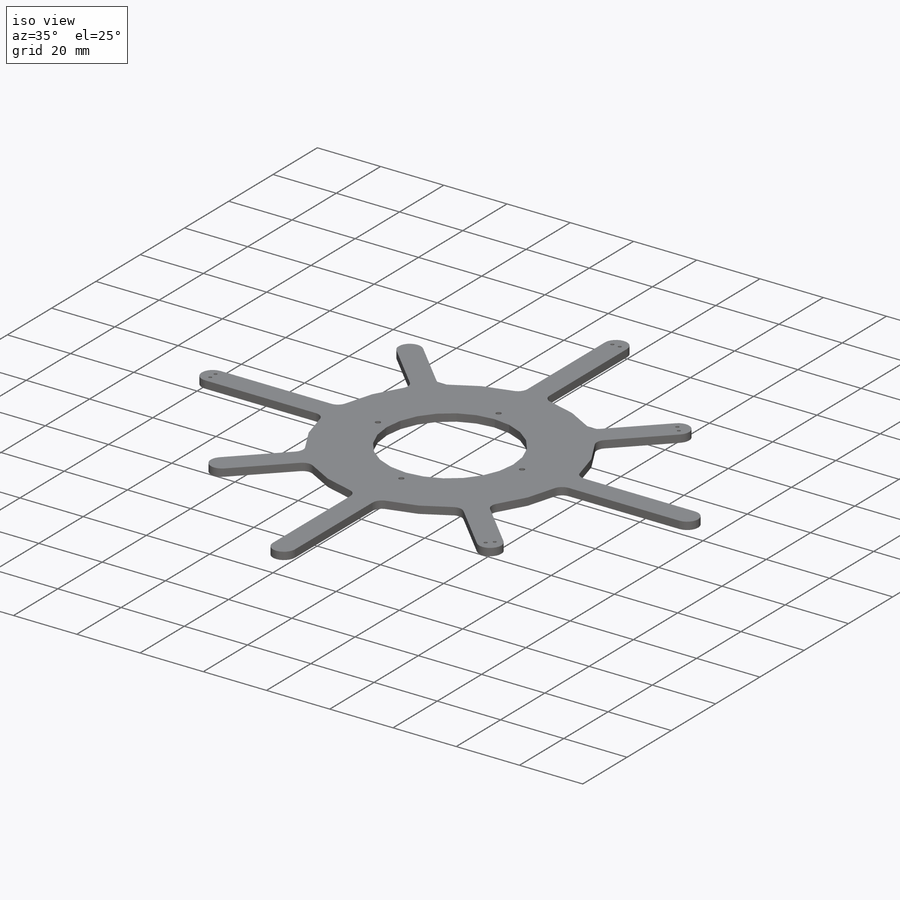
[diagram: iso view]
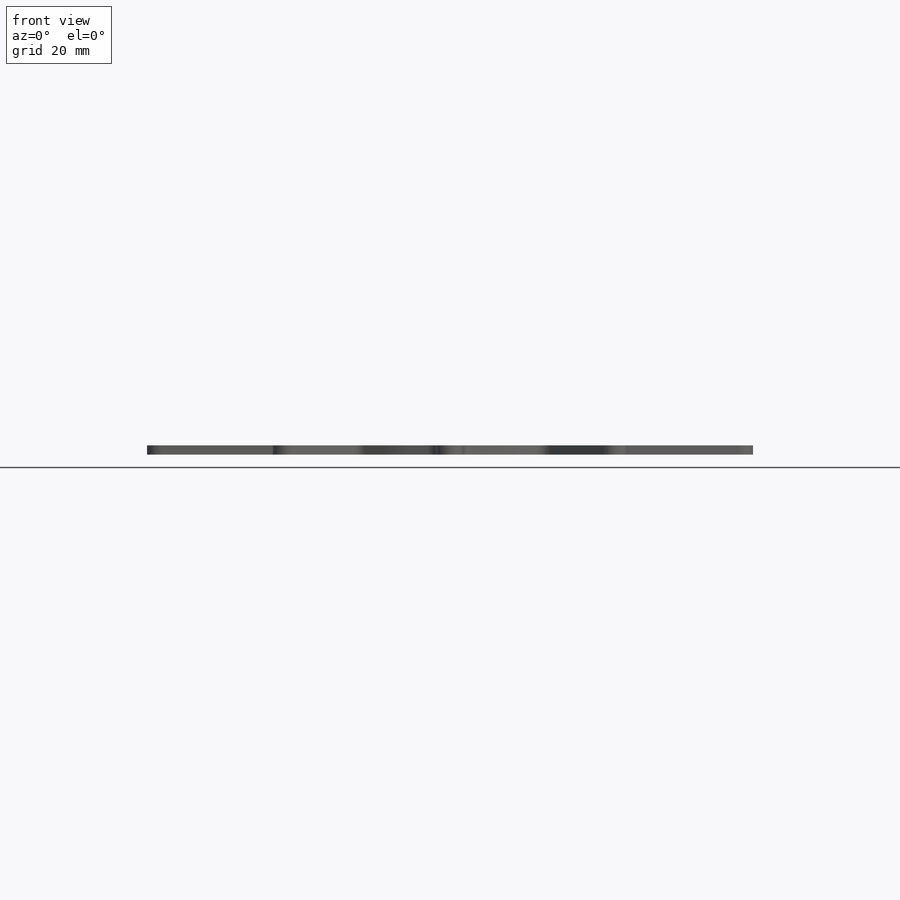
[diagram: front view]
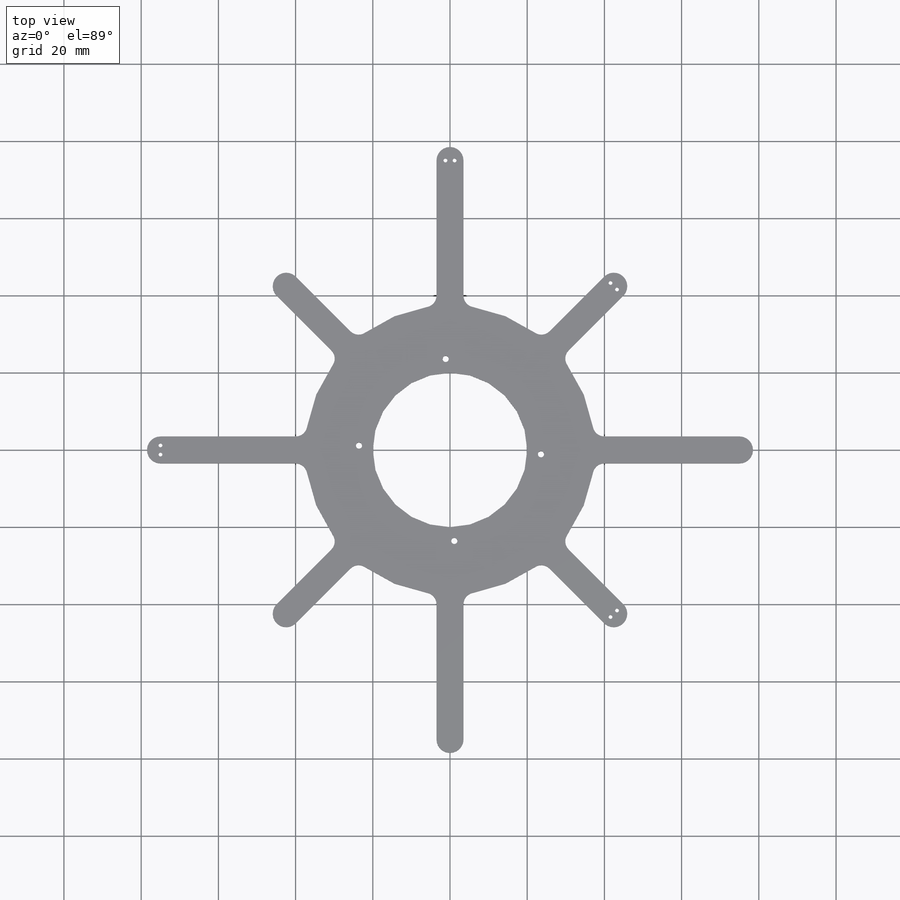
[diagram: top view]
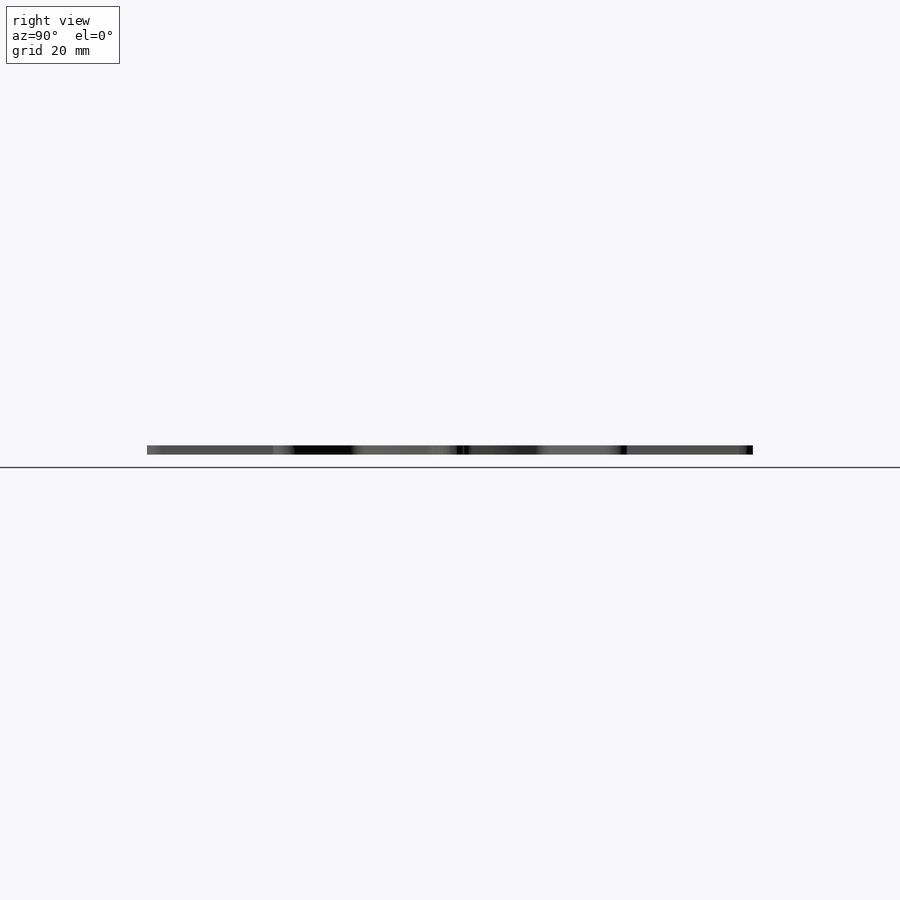
[diagram: right view]
SOLIDWORKS PART (.sldprt)
format: sldprt  version: not decoded by parser v0  size: 461,824 bytes
history: native  units: mm
features: sketch x20, fillet x6, pattern_circular x6, sheet_metal_op x2, extrude x2, cut_extrude x2, material x1 + 1 further entry (+13 scaffold rows collapsed; 1 parser-record rows omitted)
feature tree (54):
  scaffold x13  (default folders/planes/origin — collapsed)
  material  "Material <not specified>"
  sketch  "Sketch1"  dims[c1.D1=75.0mm c1.D2=40.0mm c2.D1=10.0mm c2.D2=0.5 c2.D3=0.0mm c2.D6=500.0mm]
  sheet_metal_op  "Base-Flange1"
  sketch  "Sketch6"  dims[D1=75.0mm D2=7.0mm]
  extrude  "Boss-Extrude1"  Depth=10mm
  sketch  "Sketch9"  dims[c1.D1=~37.663691mm c2.D1=45.0deg c2.D2=60.0mm]
  extrude  "Boss-Extrude2"  Depth=2.38125mm
  fillet  "Fillet1"  Radius=3mm
  pattern_circular  "CirPattern1"  Count=4 Angle=90deg
  sketch  "Sketch7"  dims[D2=1.0mm D1=~2.38125mm D3=~5.059908mm]
  cut_extrude  "Cut-Extrude1"  Depth=2.38125mm
  sketch  "Sketch10"  dims[c1.D4=1.5875mm c1.D1=31.75mm c1.D2=34.925mm c1.D3=~12.456995mm c2.D3=45.0deg]
  cut_extrude  "Cut-Extrude2"  Depth=2.38125mm
  sketch  "Sketch11"
  sketch  "Bend-Lines1"
  sketch  "Bounding-Box1"
  sheet_metal_op  "Sheet-Metal1"
  "Flat-Pattern1"
  sketch  "Bend-Lines2"
  sketch  "Bounding-Box2"
  parser-record x1  (decoder bookkeeping rows leaked as tree rows — omitted from the tree; the rows remain in map.json)
  fillet  "Sheet-Metal2"  Radius=10mm
  pattern_circular  "Flat-Pattern1"  [2 undecoded]
  sketch  "Bend-Lines2"
  sketch  "Bounding-Box2"
  fillet  "Sheet-Metal3"  Radius=10mm
  pattern_circular  "Flat-Pattern1"  [2 undecoded]
  sketch  "Bend-Lines2"
  sketch  "Bounding-Box2"
  fillet  "Sheet-Metal4"  Radius=10mm
  pattern_circular  "Flat-Pattern1"  [2 undecoded]
  sketch  "Bend-Lines2"
  sketch  "Bounding-Box2"
  fillet  "Sheet-Metal5"  Radius=10mm
  pattern_circular  "Flat-Pattern1"  [2 undecoded]
  sketch  "Bend-Lines2"
  sketch  "Bounding-Box2"
  fillet  "Sheet-Metal6"  Radius=10mm
  pattern_circular  "Flat-Pattern1"  [2 undecoded]
  sketch  "Bend-Lines2"
  sketch  "Bounding-Box2"
decode coverage: 16 of 38 modeling features carry decoded parameters; 1 rows unclassified (native names shown)
note: ~ marks probable driven/reference dimensions
note: 10 parameter values undecoded
note: suppression state not decoded; provenance and decode notes live in map.json
